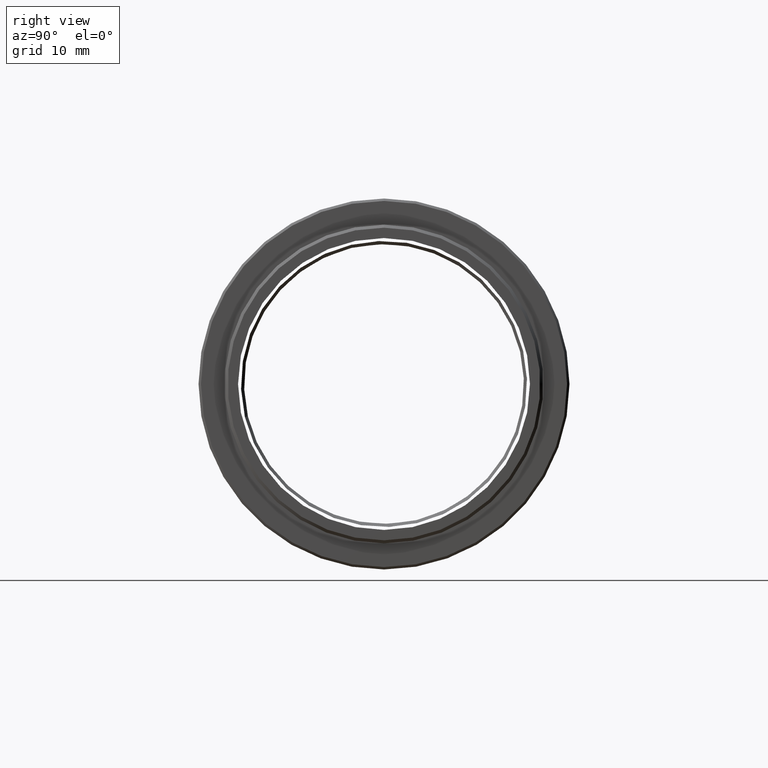
[diagram: clean part render]
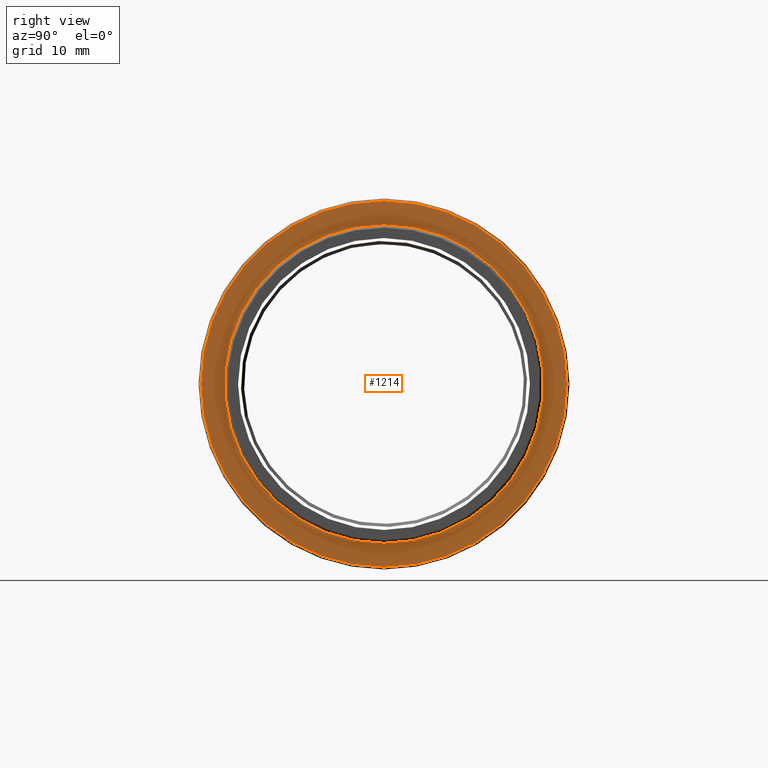
[diagram: same view with one face highlighted and labeled with its STEP entity id]
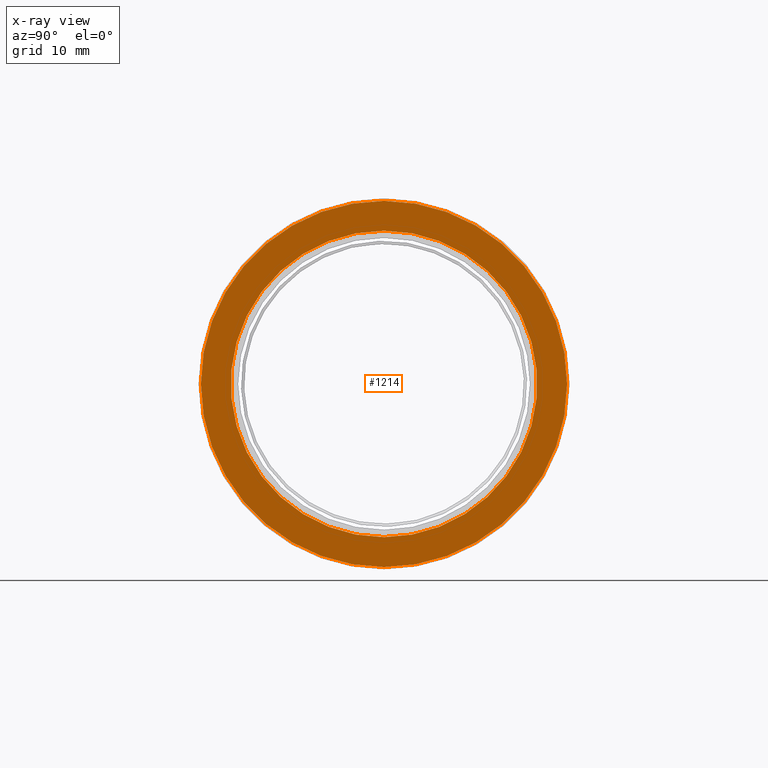
[diagram: x-ray of the same camera — body ghosted, the highlighted face saturated]
A machine part, right view. The second image highlights one B-rep face of the part: STEP entity #1214.
The next image is the same camera in x-ray: the body ghosted, the highlighted face saturated — about 0% of this face is hidden behind the body in this view.
In plain terms, the highlighted planar face has unit normal (1, 0, 0).
Its self-contained STEP definition (entity closure, byte-faithful):
#35 = EDGE_CURVE ( 'NONE', #1119, #1446, #1508, .T. ) ;
#67 = EDGE_CURVE ( 'NONE', #916, #308, #1468, .T. ) ;
#73 = DIRECTION ( 'NONE',  ( 0.000000000000000000, 0.000000000000000000, -1.000000000000000000 ) ) ;
#283 = CIRCLE ( 'NONE', #819, 15.04999999999997939 ) ;
#308 = VERTEX_POINT ( 'NONE', #375 ) ;
#327 = DIRECTION ( 'NONE',  ( 1.000000000000000000, 0.000000000000000000, 0.000000000000000000 ) ) ;
#370 = CARTESIAN_POINT ( 'NONE',  ( 3.525999999999982926, -20.10857142857141966, 15.04999999999997939 ) ) ;
#375 = CARTESIAN_POINT ( 'NONE',  ( 3.525999999999982926, -20.10857142857141966, 12.60000000000000142 ) ) ;
#387 = AXIS2_PLACEMENT_3D ( 'NONE', #1069, #327, #1175 ) ;
#513 = EDGE_LOOP ( 'NONE', ( #897, #1152 ) ) ;
#535 = CARTESIAN_POINT ( 'NONE',  ( 3.525999999999982926, -20.10857142857141611, -15.04999999999997939 ) ) ;
#552 = DIRECTION ( 'NONE',  ( 1.000000000000000000, 0.000000000000000000, 0.000000000000000000 ) ) ;
#614 = FACE_OUTER_BOUND ( 'NONE', #1408, .T. ) ;
#734 = ORIENTED_EDGE ( 'NONE', *, *, #35, .T. ) ;
#739 = DIRECTION ( 'NONE',  ( 0.000000000000000000, 0.000000000000000000, -1.000000000000000000 ) ) ;
#742 = FACE_BOUND ( 'NONE', #513, .T. ) ;
#789 = ORIENTED_EDGE ( 'NONE', *, *, #1029, .T. ) ;
#796 = CARTESIAN_POINT ( 'NONE',  ( 3.525999999999982926, -20.10857142857141966, 0.000000000000000000 ) ) ;
#804 = CARTESIAN_POINT ( 'NONE',  ( 3.525999999999982926, -20.10857142857141966, 0.000000000000000000 ) ) ;
#819 = AXIS2_PLACEMENT_3D ( 'NONE', #804, #828, #73 ) ;
#828 = DIRECTION ( 'NONE',  ( 1.000000000000000000, 0.000000000000000000, 0.000000000000000000 ) ) ;
#867 = DIRECTION ( 'NONE',  ( 1.000000000000000000, 0.000000000000000000, 0.000000000000000000 ) ) ;
#891 = CARTESIAN_POINT ( 'NONE',  ( 3.525999999999982926, -20.10857142857141966, -12.60000000000000142 ) ) ;
#897 = ORIENTED_EDGE ( 'NONE', *, *, #1352, .F. ) ;
#916 = VERTEX_POINT ( 'NONE', #891 ) ;
#921 = DIRECTION ( 'NONE',  ( 0.000000000000000000, 0.000000000000000000, -1.000000000000000000 ) ) ;
#1023 = CARTESIAN_POINT ( 'NONE',  ( 3.525999999999982926, -20.10857142857141966, 0.000000000000000000 ) ) ;
#1029 = EDGE_CURVE ( 'NONE', #1446, #1119, #283, .T. ) ;
#1069 = CARTESIAN_POINT ( 'NONE',  ( 3.525999999999982926, -20.10857142857141966, 0.000000000000000000 ) ) ;
#1119 = VERTEX_POINT ( 'NONE', #370 ) ;
#1140 = CIRCLE ( 'NONE', #1562, 12.60000000000000142 ) ;
#1152 = ORIENTED_EDGE ( 'NONE', *, *, #67, .F. ) ;
#1175 = DIRECTION ( 'NONE',  ( 0.000000000000000000, 0.000000000000000000, -1.000000000000000000 ) ) ;
#1209 = AXIS2_PLACEMENT_3D ( 'NONE', #796, #552, #921 ) ;
#1214 = ADVANCED_FACE ( 'NONE', ( #614, #742 ), #1587, .T. ) ;
#1272 = DIRECTION ( 'NONE',  ( 0.000000000000000000, 0.000000000000000000, -1.000000000000000000 ) ) ;
#1352 = EDGE_CURVE ( 'NONE', #308, #916, #1140, .T. ) ;
#1379 = DIRECTION ( 'NONE',  ( 1.000000000000000000, 0.000000000000000000, 0.000000000000000000 ) ) ;
#1408 = EDGE_LOOP ( 'NONE', ( #734, #789 ) ) ;
#1446 = VERTEX_POINT ( 'NONE', #535 ) ;
#1468 = CIRCLE ( 'NONE', #387, 12.60000000000000142 ) ;
#1472 = CARTESIAN_POINT ( 'NONE',  ( 3.525999999999982926, -20.10857142857141966, 0.000000000000000000 ) ) ;
#1484 = AXIS2_PLACEMENT_3D ( 'NONE', #1472, #867, #739 ) ;
#1508 = CIRCLE ( 'NONE', #1209, 15.04999999999997939 ) ;
#1562 = AXIS2_PLACEMENT_3D ( 'NONE', #1023, #1379, #1272 ) ;
#1587 = PLANE ( 'NONE',  #1484 ) ;